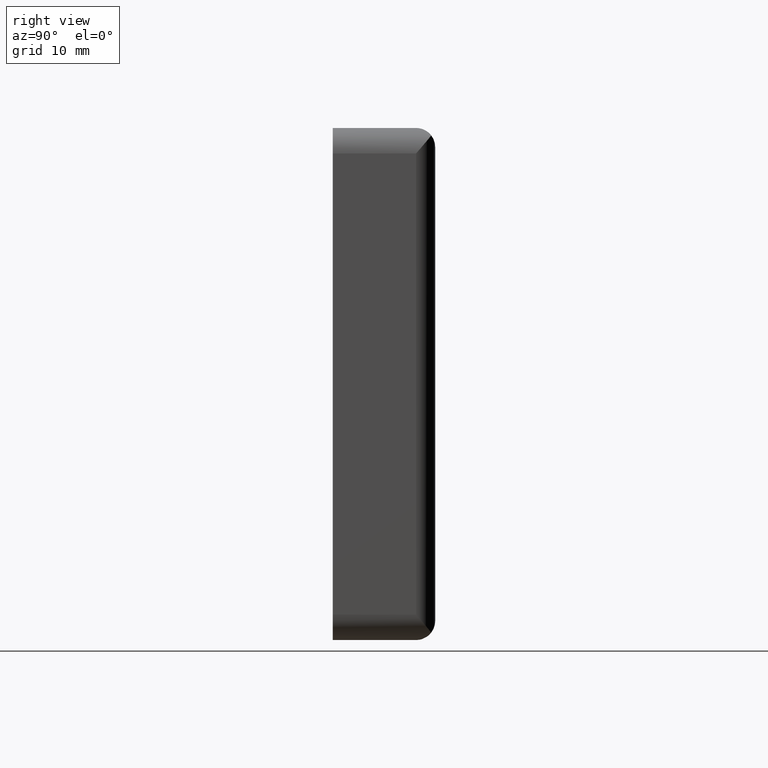
[diagram: clean part render]
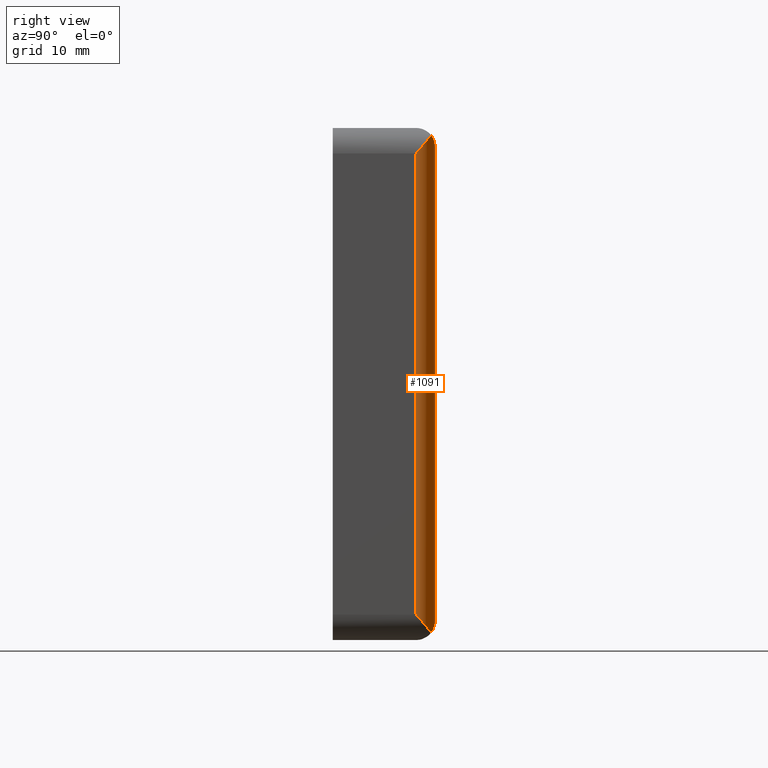
[diagram: same view with one face highlighted and labeled with its STEP entity id]
A machine part, right view. The second image highlights one B-rep face of the part: STEP entity #1091.
In plain terms, the highlighted cylindrical surface (edge-blend (fillet) strip) has radius 3 mm, axis along (0, 0, 1).
Its self-contained STEP definition (entity closure, byte-faithful):
#12 = VERTEX_POINT ( 'NONE', #253 ) ;
#77 = ORIENTED_EDGE ( 'NONE', *, *, #831, .T. ) ;
#96 = CARTESIAN_POINT ( 'NONE',  ( 39.99999999999998600, 13.10766476305309800, -36.12432058943593900 ) ) ;
#109 = CARTESIAN_POINT ( 'NONE',  ( 37.00000000000000000, 16.00000000000000000, -37.00000000000000000 ) ) ;
#114 =( BOUNDED_CURVE ( )  B_SPLINE_CURVE ( 3, ( #109, #299, #991, #607 ),
 .UNSPECIFIED., .F., .F. ) 
 B_SPLINE_CURVE_WITH_KNOTS ( ( 4, 4 ),
 ( 4.712388980384689700, 5.367788090492906500 ),
 .UNSPECIFIED. ) 
 CURVE ( )  GEOMETRIC_REPRESENTATION_ITEM ( )  RATIONAL_B_SPLINE_CURVE ( ( 1.000000000000000000, 0.9645235218457852700, 0.9645235218457852700, 1.000000000000000000 ) ) 
 REPRESENTATION_ITEM ( '' )  );
#121 = EDGE_CURVE ( 'NONE', #12, #550, #801, .T. ) ;
#124 = CARTESIAN_POINT ( 'NONE',  ( 39.99412350868261300, 13.21642701212136100, -36.24990877120499300 ) ) ;
#129 = B_SPLINE_CURVE_WITH_KNOTS ( 'NONE', 3,
 ( #791, #900, #1260, #194, #393, #239, #252, #920, #1014, #708, #337, #427 ),
 .UNSPECIFIED., .F., .F.,
 ( 4, 2, 2, 2, 2, 4 ),
 ( -1.264911580359389800E-005, 0.0004774583186759194700, 0.0009675657531554328600, 0.001947780622114456200, 0.002927995491073480100, 0.003908210360032503400 ),
 .UNSPECIFIED. ) ;
#133 = VERTEX_POINT ( 'NONE', #204 ) ;
#163 = EDGE_CURVE ( 'NONE', #497, #894, #244, .T. ) ;
#179 = DIRECTION ( 'NONE',  ( 1.000000000000000000, 0.0000000000000000000, 0.0000000000000000000 ) ) ;
#194 = CARTESIAN_POINT ( 'NONE',  ( 39.97089203796559800, 13.43060167904425800, 36.49748854733231700 ) ) ;
#199 = CARTESIAN_POINT ( 'NONE',  ( 39.95350249651469500, 13.53712746570117900, -36.62076534965888200 ) ) ;
#204 = CARTESIAN_POINT ( 'NONE',  ( 38.82842712474781900, 15.37841423000418600, 38.82842712474780500 ) ) ;
#225 = EDGE_CURVE ( 'NONE', #408, #12, #998, .T. ) ;
#232 = CARTESIAN_POINT ( 'NONE',  ( 37.00000000000000000, 15.99999999999999300, 37.00000000000000000 ) ) ;
#239 = CARTESIAN_POINT ( 'NONE',  ( 39.88401114786969300, 13.85397326156055600, 36.98826224870940400 ) ) ;
#242 = CARTESIAN_POINT ( 'NONE',  ( 37.00000000000000000, 15.99999999999999300, 37.00000000000000000 ) ) ;
#244 = LINE ( 'NONE', #696, #772 ) ;
#252 = CARTESIAN_POINT ( 'NONE',  ( 39.81469691724778000, 14.06213723432814400, 37.23077577007112600 ) ) ;
#253 = CARTESIAN_POINT ( 'NONE',  ( 39.99999999999999300, 13.00000000000000200, -36.00000000000000700 ) ) ;
#265 = EDGE_CURVE ( 'NONE', #550, #133, #129, .T. ) ;
#269 = ORIENTED_EDGE ( 'NONE', *, *, #225, .F. ) ;
#299 = CARTESIAN_POINT ( 'NONE',  ( 37.66740903103244200, 16.00000000000000000, -37.66740903103244200 ) ) ;
#321 = DIRECTION ( 'NONE',  ( 0.0000000000000000000, 0.0000000000000000000, 1.000000000000000000 ) ) ;
#337 = CARTESIAN_POINT ( 'NONE',  ( 39.03489171009092500, 15.21969274096393800, 38.62196253940136600 ) ) ;
#352 = DIRECTION ( 'NONE',  ( 0.0000000000000000000, 0.0000000000000000000, 1.000000000000000000 ) ) ;
#393 = CARTESIAN_POINT ( 'NONE',  ( 39.95352107080188400, 13.53703905114396400, 36.62066283920953700 ) ) ;
#408 = VERTEX_POINT ( 'NONE', #1123 ) ;
#417 = CARTESIAN_POINT ( 'NONE',  ( 38.82842712474781900, 15.37841423000418600, 38.82842712474780500 ) ) ;
#420 = CARTESIAN_POINT ( 'NONE',  ( 39.81479996824658200, 14.06177168103369000, -37.23035168334028800 ) ) ;
#427 = CARTESIAN_POINT ( 'NONE',  ( 38.82842712474781900, 15.37841423000418600, 38.82842712474780500 ) ) ;
#497 = VERTEX_POINT ( 'NONE', #1237 ) ;
#515 = CARTESIAN_POINT ( 'NONE',  ( 39.62529759722384900, 14.46910533655581000, -37.70987759620254600 ) ) ;
#546 = ORIENTED_EDGE ( 'NONE', *, *, #265, .F. ) ;
#550 = VERTEX_POINT ( 'NONE', #1163 ) ;
#587 = CARTESIAN_POINT ( 'NONE',  ( 39.97087372156941900, 13.43072678963581300, -36.49763328253421700 ) ) ;
#599 = EDGE_LOOP ( 'NONE', ( #1015, #77, #546, #738, #269, #881 ) ) ;
#607 = CARTESIAN_POINT ( 'NONE',  ( 38.82842712474780500, 15.37841423000419300, -38.82842712474781200 ) ) ;
#621 =( BOUNDED_CURVE ( )  B_SPLINE_CURVE ( 3, ( #232, #790, #996, #417 ),
 .UNSPECIFIED., .F., .T. ) 
 B_SPLINE_CURVE_WITH_KNOTS ( ( 4, 4 ),
 ( 4.712388980384689700, 5.367788090492908300 ),
 .UNSPECIFIED. ) 
 CURVE ( )  GEOMETRIC_REPRESENTATION_ITEM ( )  RATIONAL_B_SPLINE_CURVE ( ( 1.000000000000000000, 0.9645235218457850500, 0.9645235218457850500, 1.000000000000000000 ) ) 
 REPRESENTATION_ITEM ( '' )  );
#665 = CYLINDRICAL_SURFACE ( 'NONE', #932, 3.000000000000002700 ) ;
#670 = CARTESIAN_POINT ( 'NONE',  ( 39.88403406357443300, 13.85386132683162200, -36.98813249624407700 ) ) ;
#696 = CARTESIAN_POINT ( 'NONE',  ( 37.00000000000000000, 16.00000000000000000, 40.00000000000000000 ) ) ;
#708 = CARTESIAN_POINT ( 'NONE',  ( 39.20894987977496300, 15.04378620874601000, 38.40329025163295300 ) ) ;
#738 = ORIENTED_EDGE ( 'NONE', *, *, #121, .F. ) ;
#744 = EDGE_CURVE ( 'NONE', #497, #408, #114, .T. ) ;
#751 = CARTESIAN_POINT ( 'NONE',  ( 37.00000000000000000, 13.00000000000000200, 40.00000000000000000 ) ) ;
#772 = VECTOR ( 'NONE', #321, 1000.000000000000000 ) ;
#790 = CARTESIAN_POINT ( 'NONE',  ( 37.66740903103244200, 15.99999999999999300, 37.66740903103244200 ) ) ;
#791 = CARTESIAN_POINT ( 'NONE',  ( 39.99999999999999300, 13.00000000000000200, 36.00000000000000700 ) ) ;
#801 = LINE ( 'NONE', #1069, #1048 ) ;
#831 = EDGE_CURVE ( 'NONE', #894, #133, #621, .T. ) ;
#881 = ORIENTED_EDGE ( 'NONE', *, *, #744, .F. ) ;
#894 = VERTEX_POINT ( 'NONE', #242 ) ;
#900 = CARTESIAN_POINT ( 'NONE',  ( 40.00000000000000000, 13.10695023945531900, 36.12349552845829900 ) ) ;
#920 = CARTESIAN_POINT ( 'NONE',  ( 39.62471595794642800, 14.47021099867051900, 37.71118549282723400 ) ) ;
#932 = AXIS2_PLACEMENT_3D ( 'NONE', #751, #352, #179 ) ;
#970 = CARTESIAN_POINT ( 'NONE',  ( 38.82842712474780500, 15.37841423000419300, -38.82842712474781200 ) ) ;
#991 = CARTESIAN_POINT ( 'NONE',  ( 38.29930207920086400, 15.78518382188464900, -38.29930207920086400 ) ) ;
#996 = CARTESIAN_POINT ( 'NONE',  ( 38.29930207920086400, 15.78518382188464600, 38.29930207920086400 ) ) ;
#998 = B_SPLINE_CURVE_WITH_KNOTS ( 'NONE', 3,
 ( #970, #1101, #1001, #1004, #515, #420, #670, #199, #587, #124, #96, #1108 ),
 .UNSPECIFIED., .F., .F.,
 ( 4, 2, 2, 2, 2, 4 ),
 ( 1.356507450067245400E-014, 0.0009867635841275723600, 0.001973527168241579600, 0.002960290752355586700, 0.003453672544412592300, 0.003947054336469597200 ),
 .UNSPECIFIED. ) ;
#1001 = CARTESIAN_POINT ( 'NONE',  ( 39.20890182824139500, 15.04388981783801400, -38.40341145440258700 ) ) ;
#1004 = CARTESIAN_POINT ( 'NONE',  ( 39.50374642574884400, 14.66972653743656400, -37.94864017881615600 ) ) ;
#1014 = CARTESIAN_POINT ( 'NONE',  ( 39.50328647997307700, 14.67035278836604600, 37.94939662555868400 ) ) ;
#1015 = ORIENTED_EDGE ( 'NONE', *, *, #163, .T. ) ;
#1048 = VECTOR ( 'NONE', #1249, 1000.000000000000000 ) ;
#1069 = CARTESIAN_POINT ( 'NONE',  ( 40.00000000000000000, 13.00000000000000200, -36.00000000000000700 ) ) ;
#1091 = ADVANCED_FACE ( 'NONE', ( #1121 ), #665, .T. ) ;
#1101 = CARTESIAN_POINT ( 'NONE',  ( 39.03541978890915200, 15.21928677566647000, -38.62143446058059500 ) ) ;
#1108 = CARTESIAN_POINT ( 'NONE',  ( 39.99999999999999300, 13.00000000000000200, -36.00000000000000700 ) ) ;
#1121 = FACE_OUTER_BOUND ( 'NONE', #599, .T. ) ;
#1123 = CARTESIAN_POINT ( 'NONE',  ( 38.82842712474780500, 15.37841423000419300, -38.82842712474781200 ) ) ;
#1163 = CARTESIAN_POINT ( 'NONE',  ( 39.99999999999999300, 13.00000000000000200, 36.00000000000000700 ) ) ;
#1237 = CARTESIAN_POINT ( 'NONE',  ( 37.00000000000000000, 16.00000000000000000, -37.00000000000000000 ) ) ;
#1249 = DIRECTION ( 'NONE',  ( -0.0000000000000000000, -0.0000000000000000000, 1.000000000000000000 ) ) ;
#1260 = CARTESIAN_POINT ( 'NONE',  ( 39.99413351507015300, 13.21629101039277300, 36.24975166805987200 ) ) ;